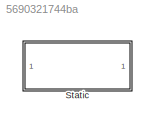
MODEL slx_5690321744ba
KIND model
CONFIG AbsTol = auto
CONFIG EnableMultiTasking = off
CONFIG FixedStep = auto
CONFIG MaxStep = auto
CONFIG MinStep = auto
CONFIG RelTol = 1e-3
CONFIG SampleTimeConstraint = Unconstrained
CONFIG SolverName = VariableStepAuto
CONFIG StartTime = 0.0
CONFIG StopTime = 10.0
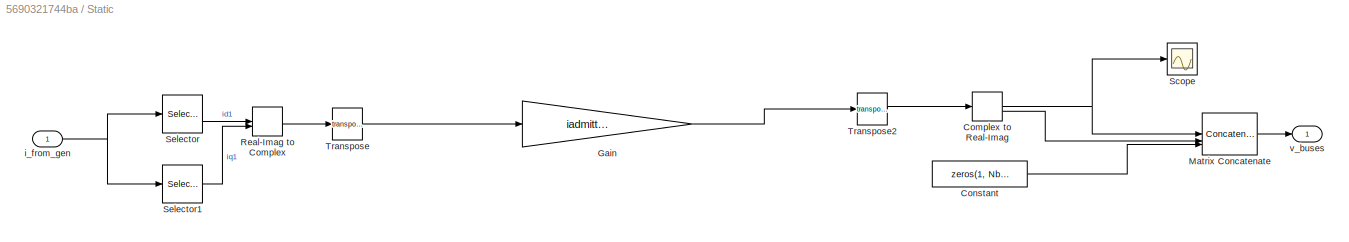
BLOCK [SubSystem] Static
  VariantControl = Static
BLOCK [ComplexToRealImag] Static/Complex to Real-Imag
BLOCK [Constant] Static/Constant
  Value = zeros(1, Nbuses)
  VectorParams1D = off
BLOCK [Gain] Static/Gain
  Gain = iadmitt_matrix
  Multiplication = Matrix(K*u)
BLOCK [Concatenate] Static/Matrix Concatenate
  Mode = Multidimensional array
  NumInputs = 3
BLOCK [RealImagToComplex] Static/Real-Imag to Complex
BLOCK [Scope] Static/Scope
  ActiveDisplayYMaximum = 1.1306
  ActiveDisplayYMinimum = 1.0463
  DataLoggingVariableName = ScopeData1
  Floating = off
  GraphicalSettings = {"GraphicalSettings":{"LegacySettings":true,"Style":{"AxesScalingProperties":{"AlignXAxis":"Center","AlignYAxis":"Center","AutoScaleXAxisLimits":true,"AxesScaling":"Manual","AxesScalingNumUpdates":10,"ScaleAxesLimitsAtStop":true,"XAxisDataRange":100,"YAxisDataRange":80},"Style":{"AxesColor":"[0 0 0]","ChannelNames":[""],"ColorOrder":"[1 0.909803921568627 0.392156862745098;0.149019607843137 0.54901...<+675ch>
  LayoutDimensionsString = [1 1]
  MultipleDisplayCache = [{"MaxYLimMag":1.1306,"MaxYLimReal":1.1306,"MinYLimMag":1.0463,"MinYLimReal":1.0463,"PlotAsMagnitudePhase":false,"ShowGrid":true,"ShowLegend":false,"Title":"%<SignalLabel>","YLabel":""}]
  NumInputPorts = 1
  WasSavedAsWebScope = on
BLOCK [Selector] Static/Selector
  IndexOptions = Index vector (dialog),Select all
  Indices = 1,find(bus_complexity == 1)
  InputPortWidth = 3
  NumberOfDimensions = 2
  OutputSizes = 1,1
BLOCK [Selector] Static/Selector1
  IndexOptions = Index vector (dialog),Select all
  Indices = 2,find(bus_complexity == 1)
  InputPortWidth = 3
  NumberOfDimensions = 2
  OutputSizes = 1,1
BLOCK [Math] Static/Transpose
  Operator = transpose
BLOCK [Math] Static/Transpose2
  Operator = transpose
BLOCK [Inport] Static/i_from_gen
BLOCK [Outport] Static/v_buses
NET Static/Complex to Real-Imag:1 -> Static/Matrix Concatenate:1, Static/Scope:1
LINE Static/Complex to Real-Imag:2 -> Static/Matrix Concatenate:2
LINE Static/Constant:1 -> Static/Matrix Concatenate:3
LINE Static/Gain:1 -> Static/Transpose2:1
LINE Static/Matrix Concatenate:1 -> Static/v_buses:1
LINE Static/Real-Imag to Complex:1 -> Static/Transpose:1
LINE Static/Selector1:1 -> Static/Real-Imag to Complex:2
LINE Static/Selector:1 -> Static/Real-Imag to Complex:1
LINE Static/Transpose2:1 -> Static/Complex to Real-Imag:1
LINE Static/Transpose:1 -> Static/Gain:1
NET Static/i_from_gen:1 -> Static/Selector1:1, Static/Selector:1
note: NET lines group one-source signal fan-out (src -> all destinations, sorted); 1:1 wires keep LINE
